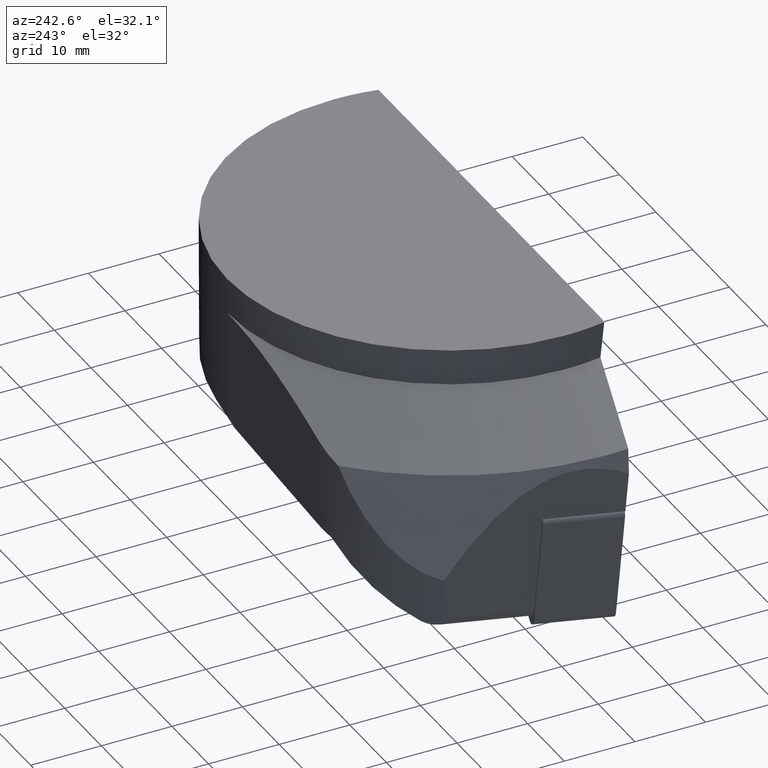
[diagram: clean part render]
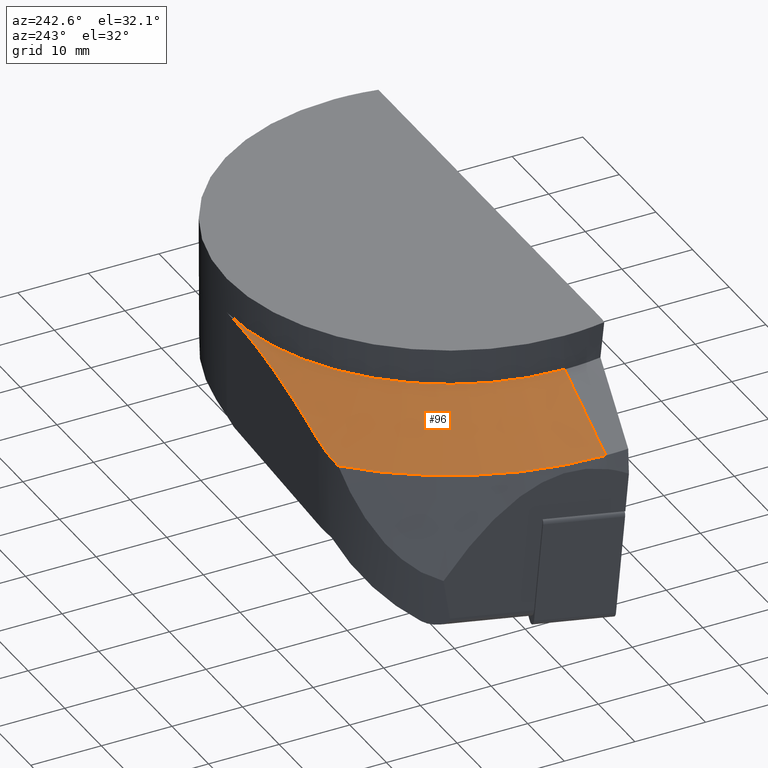
[diagram: same view with one face highlighted and labeled with its STEP entity id]
A machine part, auxiliary view. The second image highlights one B-rep face of the part: STEP entity #96.
In plain terms, the highlighted conical surface has half-angle 60 deg.
Its self-contained STEP definition (entity closure, byte-faithful):
#96=ADVANCED_FACE('',(#150),#151,.T.);
#150=FACE_OUTER_BOUND('',#214,.T.);
#151=CONICAL_SURFACE('',#215,33.0934934796696,1.0471975488034);
#214=EDGE_LOOP('',(#408,#409,#410,#411,#412));
#215=AXIS2_PLACEMENT_3D('',#413,#414,#415);
#408=ORIENTED_EDGE('',*,*,#568,.F.);
#409=ORIENTED_EDGE('',*,*,#569,.F.);
#410=ORIENTED_EDGE('',*,*,#564,.T.);
#411=ORIENTED_EDGE('',*,*,#510,.F.);
#412=ORIENTED_EDGE('',*,*,#567,.T.);
#413=CARTESIAN_POINT('',(2.66453525910038E-014,4.21884749357559E-014,-5.92000387656159));
#414=DIRECTION('',(0.0,-0.0,-1.0));
#415=DIRECTION('',(0.707106781186547,0.707106781186548,0.0));
#510=EDGE_CURVE('',#600,#602,#603,.T.);
#564=EDGE_CURVE('',#692,#602,#693,.T.);
#567=EDGE_CURVE('',#600,#695,#697,.T.);
#568=EDGE_CURVE('',#698,#695,#699,.T.);
#569=EDGE_CURVE('',#692,#698,#700,.T.);
#600=VERTEX_POINT('',#758);
#602=VERTEX_POINT('',#775);
#603=B_SPLINE_CURVE_WITH_KNOTS('',3,(#776,#777,#778,#779,#780,#781),.UNSPECIFIED.,.F.,.F.,(4,2,4),(3.85715846001028,5.74178911328001,8.4775333503241),.UNSPECIFIED.);
#692=VERTEX_POINT('',#919);
#693=(B_SPLINE_CURVE(2,(#921,#922,#923),.UNSPECIFIED.,.F.,.F.)B_SPLINE_CURVE_WITH_KNOTS((3,3),(29.7690639770025,56.1841265537815),.UNSPECIFIED.)RATIONAL_B_SPLINE_CURVE((1.0,1.0760277212544,1.01713168299413))BOUNDED_CURVE()REPRESENTATION_ITEM('')GEOMETRIC_REPRESENTATION_ITEM()CURVE());
#695=VERTEX_POINT('',#932);
#697=CIRCLE('',#935,42.7583302491977);
#698=VERTEX_POINT('',#936);
#699=LINE('',#937,#938);
#700=CIRCLE('',#939,31.5);
#758=CARTESIAN_POINT('',(-29.4512462150672,30.9983693454825,-11.5));
#775=CARTESIAN_POINT('',(-25.0,31.5,-10.0316346940355));
#776=CARTESIAN_POINT('',(-29.4512462150672,30.9983693454825,-11.5));
#777=CARTESIAN_POINT('',(-28.8547898446183,31.134533253057,-11.3198002116523));
#778=CARTESIAN_POINT('',(-28.2523575804097,31.2432334774766,-11.1313465735817));
#779=CARTESIAN_POINT('',(-26.7680451375148,31.441419094313,-10.6500527578228));
#780=CARTESIAN_POINT('',(-25.8826901717809,31.5,-10.3484448479002));
#781=CARTESIAN_POINT('',(-25.0,31.5,-10.0316346940355));
#919=CARTESIAN_POINT('',(0.0,31.5,-5.0));
#921=CARTESIAN_POINT('',(0.0,31.5,-5.0));
#922=CARTESIAN_POINT('',(-10.9809591383467,31.5,-5.0));
#923=CARTESIAN_POINT('',(-25.0,31.5,-10.0316346940355));
#932=CARTESIAN_POINT('',(-42.7583302491977,7.947789E-015,-11.5));
#935=AXIS2_PLACEMENT_3D('',#1077,#1078,#1079);
#936=CARTESIAN_POINT('',(-31.5,3.85751E-015,-5.0));
#937=CARTESIAN_POINT('',(-31.5,3.85751E-015,-5.0));
#938=VECTOR('',#1080,13.0);
#939=AXIS2_PLACEMENT_3D('',#1081,#1082,#1083);
#1077=CARTESIAN_POINT('',(0.0,4.494703E-015,-11.5));
#1078=DIRECTION('',(0.0,0.0,1.0));
#1079=DIRECTION('',(-1.0,0.0,0.0));
#1080=DIRECTION('',(-0.866025403784438,3.146368E-016,-0.5));
#1081=CARTESIAN_POINT('',(0.0,1.608123E-015,-5.0));
#1082=DIRECTION('',(0.0,0.0,1.0));
#1083=DIRECTION('',(-1.0,0.0,0.0));